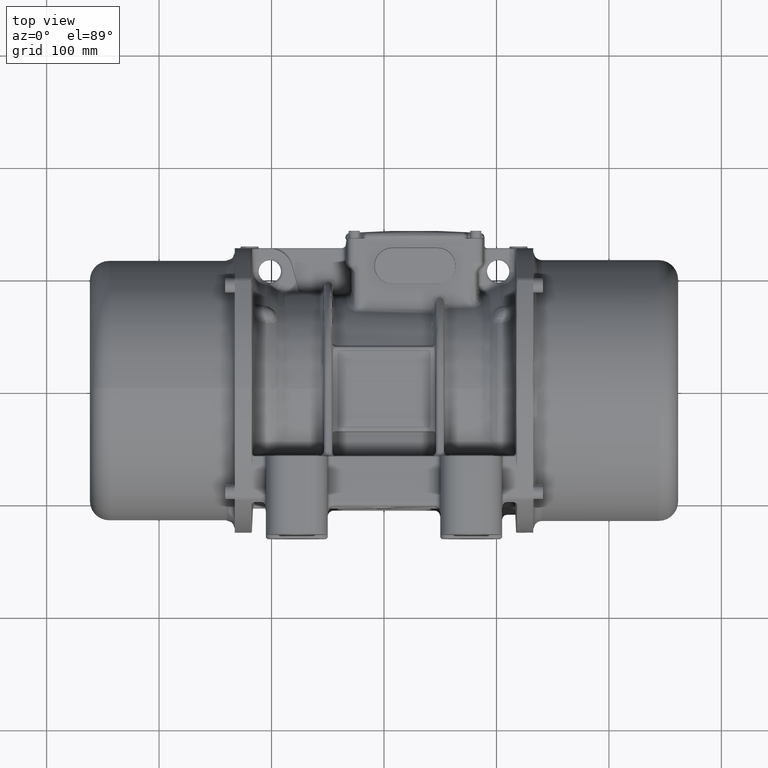
[diagram: clean part render]
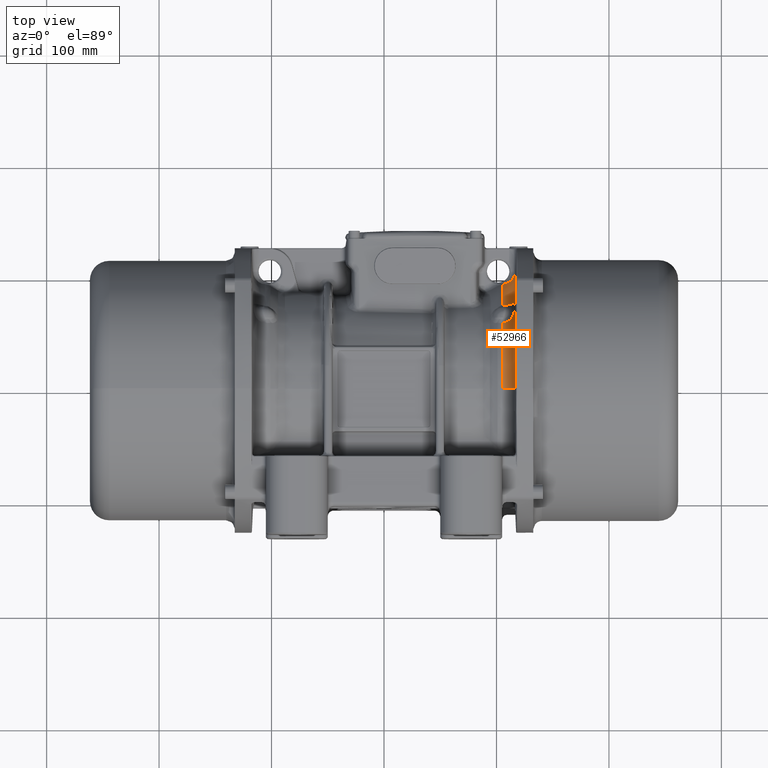
[diagram: same view with one face highlighted and labeled with its STEP entity id]
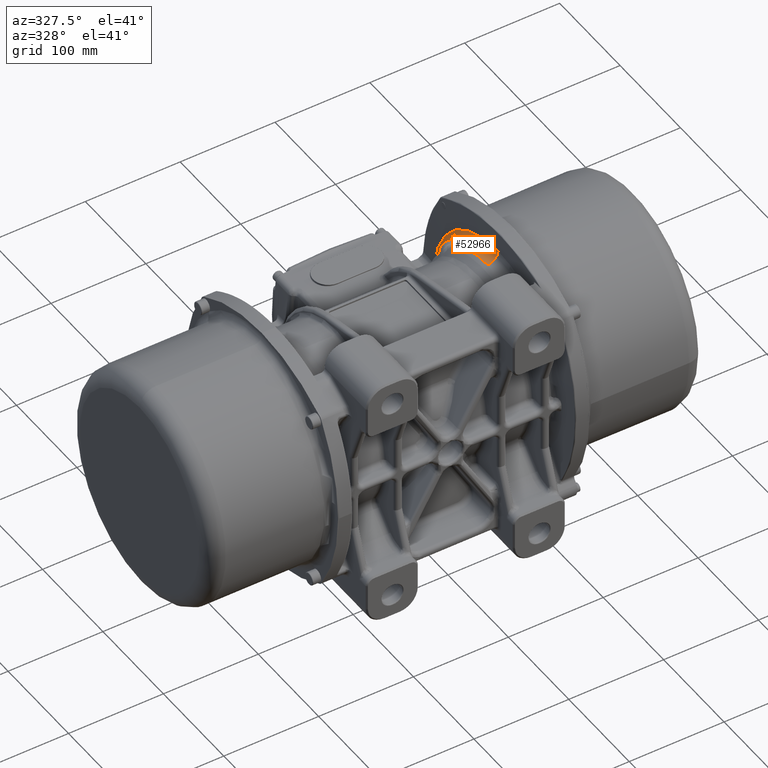
[diagram: same view with one face highlighted and labeled with its STEP entity id]
A machine part, top view. The second image highlights one B-rep face of the part: STEP entity #52966.
A second angle (auxiliary view) of the same face is appended — the face is thin or edge-on in the first view.
In plain terms, the highlighted toroidal blend (fillet) surface has major radius 107 mm and minor (blend) radius 12 mm.
Its self-contained STEP definition (entity closure, byte-faithful):
#292 = CARTESIAN_POINT ( 'NONE',  ( 105.7689292740021900, 58.91350817195719700, 74.59466595996239800 ) ) ;
#1168 = CARTESIAN_POINT ( 'NONE',  ( 106.4675455657123300, 58.94890908728345400, 74.65104205521089400 ) ) ;
#1380 = CARTESIAN_POINT ( 'NONE',  ( 107.8305861490186000, 59.26712605695800600, 74.79846439194710700 ) ) ;
#2503 = EDGE_CURVE ( 'NONE', #3961, #85003, #30197, .T. ) ;
#3426 = CARTESIAN_POINT ( 'NONE',  ( 105.7689292740000000, -1.324943627034614000E-009, 1.107620939411190000E-011 ) ) ;
#3961 = VERTEX_POINT ( 'NONE', #35522 ) ;
#4083 = EDGE_CURVE ( 'NONE', #71861, #121483, #15169, .T. ) ;
#4919 = CARTESIAN_POINT ( 'NONE',  ( 115.7288528879818400, 101.5653235470109800, 13.20475090512557500 ) ) ;
#5368 = CARTESIAN_POINT ( 'NONE',  ( 113.3642083967274800, 97.90959006556489900, 12.95961255710392600 ) ) ;
#5421 = FACE_OUTER_BOUND ( 'NONE', #55054, .T. ) ;
#5596 = CARTESIAN_POINT ( 'NONE',  ( 111.4586842790448600, 75.44372760998422200, 61.16861360488872600 ) ) ;
#6276 = CARTESIAN_POINT ( 'NONE',  ( 115.8326450012909000, 101.8239859723926600, 13.22167478367763300 ) ) ;
#6506 = CARTESIAN_POINT ( 'NONE',  ( 111.6207118906533300, 75.48144881480072900, 61.30305905681265700 ) ) ;
#6731 = CARTESIAN_POINT ( 'NONE',  ( 115.6941848065150400, 101.4823127536670700, 13.19929225356159600 ) ) ;
#6933 = DIRECTION ( 'NONE',  ( 1.000000000000000000, -8.281330032705208600E-017, -1.831206913087109800E-016 ) ) ;
#6941 = CARTESIAN_POINT ( 'NONE',  ( 114.0204814469895200, 76.03723544680396200, 64.19904338924908400 ) ) ;
#7268 = AXIS2_PLACEMENT_3D ( 'NONE', #11656, #136005, #104902 ) ;
#7638 = CARTESIAN_POINT ( 'NONE',  ( 110.4308036585494900, 95.63567452510290000, 12.80264782387215800 ) ) ;
#7863 = CARTESIAN_POINT ( 'NONE',  ( 113.3319783029813400, 63.14592761886256500, 75.89274307153358700 ) ) ;
#8087 = CARTESIAN_POINT ( 'NONE',  ( 111.1034871725938900, 96.03197236133935600, 12.83022299868890300 ) ) ;
#8314 = CARTESIAN_POINT ( 'NONE',  ( 116.0127664432377200, 70.97078727795387500, 74.89422771893670500 ) ) ;
#8752 = CARTESIAN_POINT ( 'NONE',  ( 115.6642782351407000, 75.75177907823278600, 68.70197974104878800 ) ) ;
#9214 = CARTESIAN_POINT ( 'NONE',  ( 110.6827723462277500, 60.59976135419488200, 75.27163834459456400 ) ) ;
#9657 = CARTESIAN_POINT ( 'NONE',  ( 115.1572593984283900, 66.79251087964652800, 76.06349486637300600 ) ) ;
#10222 = CARTESIAN_POINT ( 'NONE',  ( 105.7689292740021900, 74.59466595995239400, 58.91350817186660300 ) ) ;
#10801 = CARTESIAN_POINT ( 'NONE',  ( 105.7689292740000000, 94.20100722604540500, 12.70180587093276100 ) ) ;
#11656 = CARTESIAN_POINT ( 'NONE',  ( 104.6371793911750100, -1.324947096481565900E-009, 106.9999999988420700 ) ) ;
#13567 = DIRECTION ( 'NONE',  ( 1.000000000000000000, -8.281330032705208600E-017, -1.831206913087109800E-016 ) ) ;
#15169 = CIRCLE ( 'NONE', #38302, 95.05348828358059200 ) ;
#15510 = CARTESIAN_POINT ( 'NONE',  ( 115.0026911939019000, 100.0571785054219400, 13.10466824527819300 ) ) ;
#15970 = CARTESIAN_POINT ( 'NONE',  ( 112.8286511735123600, 97.34414058753047500, 12.92101170702613000 ) ) ;
#17357 = CARTESIAN_POINT ( 'NONE',  ( 115.6881707144549000, 101.4680842924555400, 13.19835438279817600 ) ) ;
#17577 = CARTESIAN_POINT ( 'NONE',  ( 114.5895993120563500, 76.10458767625095800, 65.32440872550898800 ) ) ;
#18030 = CARTESIAN_POINT ( 'NONE',  ( 107.8305861490072000, 74.79846439197930900, 59.26712605698359900 ) ) ;
#18215 = VERTEX_POINT ( 'NONE', #66203 ) ;
#18488 = CARTESIAN_POINT ( 'NONE',  ( 114.5861640307059000, 65.31299515954093200, 76.10572859753425200 ) ) ;
#18945 = CARTESIAN_POINT ( 'NONE',  ( 114.0364583653116200, 64.22325080348112200, 76.04056073369683600 ) ) ;
#19383 = CARTESIAN_POINT ( 'NONE',  ( 116.0236610554181700, 71.07883750419208000, 74.83671323223943300 ) ) ;
#19842 = CARTESIAN_POINT ( 'NONE',  ( 115.7393879015485400, 75.64585827001352000, 69.08570164340147800 ) ) ;
#20293 = CARTESIAN_POINT ( 'NONE',  ( 114.3947881891876600, 64.91026980564575400, 76.08900000542225000 ) ) ;
#21212 = CARTESIAN_POINT ( 'NONE',  ( 109.8050678372312600, 60.01824866115249100, 75.08644775955815500 ) ) ;
#21673 = DIRECTION ( 'NONE',  ( 1.303365440202183100E-016, 0.0000000000000000000, -1.000000000000000000 ) ) ;
#24461 = CARTESIAN_POINT ( 'NONE',  ( 105.7689292740021900, 74.59466595995239400, 58.91350817186660300 ) ) ;
#25832 = ORIENTED_EDGE ( 'NONE', *, *, #130910, .F. ) ;
#26109 = CARTESIAN_POINT ( 'NONE',  ( 113.7785027582814200, 98.37014500239863000, 12.99094876618970900 ) ) ;
#26800 = CARTESIAN_POINT ( 'NONE',  ( 109.5032709637534500, 75.03502624420602300, 59.88051729571928700 ) ) ;
#27011 = CARTESIAN_POINT ( 'NONE',  ( 116.1051514790249400, 102.5936472871228500, 13.27176360541346700 ) ) ;
#27915 = CARTESIAN_POINT ( 'NONE',  ( 115.3732593521304200, 100.7245745524885300, 13.14932277268061600 ) ) ;
#28373 = CARTESIAN_POINT ( 'NONE',  ( 109.9397433902737800, 95.38206443098219700, 12.78493509427473300 ) ) ;
#29042 = CARTESIAN_POINT ( 'NONE',  ( 113.0346781574474700, 62.75951434457370200, 75.82284455283797800 ) ) ;
#29488 = CARTESIAN_POINT ( 'NONE',  ( 112.1541439034099500, 61.77493790945723600, 75.60825736833093900 ) ) ;
#29926 = CARTESIAN_POINT ( 'NONE',  ( 110.8324799711430200, 60.70119995698047400, 75.30360847756209400 ) ) ;
#30028 = CARTESIAN_POINT ( 'NONE',  ( 107.1582038699487900, 74.72003640168947000, 59.06720906983090200 ) ) ;
#30197 = CIRCLE ( 'NONE', #7268, 11.99999999948878000 ) ;
#30392 = CARTESIAN_POINT ( 'NONE',  ( 115.8180981054088500, 69.45966324408600200, 75.55422758242718800 ) ) ;
#30849 = CARTESIAN_POINT ( 'NONE',  ( 115.3603647483433000, 67.45629275621426800, 75.99187389412679700 ) ) ;
#32881 = EDGE_CURVE ( 'NONE', #121483, #39887, #93493, .T. ) ;
#33107 = DIRECTION ( 'NONE',  ( 1.000000000000000000, 7.887646011182619400E-017, 1.634229061735415000E-016 ) ) ;
#33760 = ORIENTED_EDGE ( 'NONE', *, *, #38127, .T. ) ;
#35522 = CARTESIAN_POINT ( 'NONE',  ( 105.7689292740000200, -1.324947190205509000E-009, 95.05348828300904500 ) ) ;
#36652 = CARTESIAN_POINT ( 'NONE',  ( 113.5385273042615400, 98.09756139973148900, 12.97242581354613300 ) ) ;
#36713 = TOROIDAL_SURFACE ( 'NONE', #85766, 106.9999999988310000, 11.99999999948877900 ) ;
#37109 = CARTESIAN_POINT ( 'NONE',  ( 115.6891680901290900, 101.4704412061974500, 13.19850978002511600 ) ) ;
#37330 = CARTESIAN_POINT ( 'NONE',  ( 110.6082361422741900, 75.25452506496871800, 60.53917584478138300 ) ) ;
#38127 = EDGE_CURVE ( 'NONE', #90637, #71861, #79769, .T. ) ;
#38302 = AXIS2_PLACEMENT_3D ( 'NONE', #123000, #6933, #39158 ) ;
#38706 = CARTESIAN_POINT ( 'NONE',  ( 114.3585721445663700, 76.08521999384535700, 64.83629361500236100 ) ) ;
#38944 = CARTESIAN_POINT ( 'NONE',  ( 105.7689292740000000, 94.20100722604540500, 12.70180587093276100 ) ) ;
#39158 = DIRECTION ( 'NONE',  ( -1.459997740052606400E-016, 0.0000000000000000000, -1.000000000000000000 ) ) ;
#39168 = CARTESIAN_POINT ( 'NONE',  ( 113.8354401022943100, 76.00246879013526800, 63.88786384692581100 ) ) ;
#39617 = CARTESIAN_POINT ( 'NONE',  ( 112.8609514290421700, 62.54965517119649800, 75.78103001764061700 ) ) ;
#39887 = VERTEX_POINT ( 'NONE', #83870 ) ;
#40043 = CARTESIAN_POINT ( 'NONE',  ( 115.8835708138766400, 75.40452463160713100, 69.87829551004982400 ) ) ;
#40502 = CARTESIAN_POINT ( 'NONE',  ( 110.7068440892164200, 60.61587103756915000, 75.27674535903273100 ) ) ;
#40949 = CARTESIAN_POINT ( 'NONE',  ( 115.2461735594112300, 67.07096297127091600, 76.03773268575318400 ) ) ;
#41331 = EDGE_CURVE ( 'NONE', #135141, #18215, #46110, .T. ) ;
#41401 = CARTESIAN_POINT ( 'NONE',  ( 114.3160995401682800, 64.75474476321053900, 76.07947382086086900 ) ) ;
#43231 = CARTESIAN_POINT ( 'NONE',  ( 116.6257580500384000, 1.615201028482005100E-010, 9.119874994079070400E-011 ) ) ;
#44760 = DIRECTION ( 'NONE',  ( 1.831206913087109800E-016, 4.150556230182344200E-033, 1.000000000000000000 ) ) ;
#46110 = B_SPLINE_CURVE_WITH_KNOTS ( 'NONE', 3,
 ( #125965, #64525, #1168, #292 ),
 .UNSPECIFIED., .F., .F.,
 ( 4, 4 ),
 ( 0.0000000000000000000, 1.000000000000000000 ),
 .UNSPECIFIED. ) ;
#46116 = CARTESIAN_POINT ( 'NONE',  ( 104.6371793911750000, -1.324947096481565900E-009, 1.107447467063594100E-011 ) ) ;
#47218 = CARTESIAN_POINT ( 'NONE',  ( 113.3977716009329600, 97.94525197323862600, 12.96204593809560800 ) ) ;
#48560 = CARTESIAN_POINT ( 'NONE',  ( 116.2959730057435900, 103.2815192018832800, 13.31643703780071600 ) ) ;
#48782 = CARTESIAN_POINT ( 'NONE',  ( 112.2187428249297200, 75.62450083897825000, 61.85393561913672800 ) ) ;
#49972 = EDGE_CURVE ( 'NONE', #39887, #135141, #130064, .T. ) ;
#50143 = CARTESIAN_POINT ( 'NONE',  ( 115.7536775663123900, 75.62336501846675700, 69.16218200512022900 ) ) ;
#50586 = CARTESIAN_POINT ( 'NONE',  ( 111.4368194133540700, 61.15019954846752600, 75.43848618435980300 ) ) ;
#51038 = CARTESIAN_POINT ( 'NONE',  ( 114.8935147138876400, 66.03650887728497300, 76.10950030809613100 ) ) ;
#51480 = CARTESIAN_POINT ( 'NONE',  ( 115.1986750751967500, 66.92040225697623200, 76.05229332298893000 ) ) ;
#52966 = ADVANCED_FACE ( 'NONE', ( #5421 ), #36713, .F. ) ;
#55054 = EDGE_LOOP ( 'NONE', ( #58435, #118821, #25832, #33760, #76342, #120196, #133201, #90881 ) ) ;
#56209 = CARTESIAN_POINT ( 'NONE',  ( 107.8305861490186000, 59.26712605695800600, 74.79846439194710700 ) ) ;
#57959 = CARTESIAN_POINT ( 'NONE',  ( 114.2767140461706700, 76.07501676165084300, 64.67573856881340100 ) ) ;
#58172 = CARTESIAN_POINT ( 'NONE',  ( 115.7013006578243300, 101.4992041657684500, 13.20040483548722300 ) ) ;
#58435 = ORIENTED_EDGE ( 'NONE', *, *, #63592, .T. ) ;
#59319 = CARTESIAN_POINT ( 'NONE',  ( 112.7706212318485900, 75.75863063982807000, 62.40325159674893700 ) ) ;
#59551 = CARTESIAN_POINT ( 'NONE',  ( 108.5792656302153900, 94.71808056208827500, 12.73846536456481000 ) ) ;
#60223 = CARTESIAN_POINT ( 'NONE',  ( 116.1430360615248400, 73.33781419016075600, 73.16541551881344700 ) ) ;
#60669 = CARTESIAN_POINT ( 'NONE',  ( 112.8091691528050300, 62.48871308826898700, 75.76850331512814300 ) ) ;
#61117 = CARTESIAN_POINT ( 'NONE',  ( 115.1778441895304600, 66.85578016518779500, 76.05805648862980200 ) ) ;
#61560 = CARTESIAN_POINT ( 'NONE',  ( 112.8256434243733800, 62.50800793099949000, 75.77249196030204800 ) ) ;
#62019 = CARTESIAN_POINT ( 'NONE',  ( 116.0506843354954800, 74.69299105747839500, 71.34807195469031200 ) ) ;
#63592 = EDGE_CURVE ( 'NONE', #18215, #3961, #123875, .T. ) ;
#63831 = CARTESIAN_POINT ( 'NONE',  ( 108.8568978792049800, 59.57227560417653900, 74.91817540478290000 ) ) ;
#64525 = CARTESIAN_POINT ( 'NONE',  ( 107.1582038698920200, 59.06720906995969500, 74.72003640185198500 ) ) ;
#65809 = DIRECTION ( 'NONE',  ( -1.000000000000000000, 8.281330032705208600E-017, 1.831206913087109800E-016 ) ) ;
#66203 = CARTESIAN_POINT ( 'NONE',  ( 105.7689292740021900, 58.91350817195719700, 74.59466595996239800 ) ) ;
#67822 = CARTESIAN_POINT ( 'NONE',  ( 116.0076696245334300, 102.3007311280819100, 13.25272211770426600 ) ) ;
#68273 = CARTESIAN_POINT ( 'NONE',  ( 113.8844406736063500, 98.49627971085240600, 12.99949922432108600 ) ) ;
#68493 = CARTESIAN_POINT ( 'NONE',  ( 114.9368887540136800, 76.11620074119321100, 66.11853998114791900 ) ) ;
#68703 = CARTESIAN_POINT ( 'NONE',  ( 115.7742161104773300, 101.6765026285278000, 13.21203652576293500 ) ) ;
#69607 = CARTESIAN_POINT ( 'NONE',  ( 115.7158500462546000, 101.5339319674255400, 13.20268968497888400 ) ) ;
#70502 = CARTESIAN_POINT ( 'NONE',  ( 110.6558384202762300, 95.76384851222832100, 12.81157372368589100 ) ) ;
#70731 = CARTESIAN_POINT ( 'NONE',  ( 113.8178990699569200, 63.85575221238019600, 75.99909521714961600 ) ) ;
#71178 = CARTESIAN_POINT ( 'NONE',  ( 115.9647092463329700, 75.15389431865317200, 70.48780162299419800 ) ) ;
#71638 = CARTESIAN_POINT ( 'NONE',  ( 115.1638504092327400, 66.81267807709497200, 76.06179318626279000 ) ) ;
#71861 = VERTEX_POINT ( 'NONE', #10801 ) ;
#72071 = CARTESIAN_POINT ( 'NONE',  ( 111.0060189209218900, 60.82290793310215800, 75.34133417523349900 ) ) ;
#72511 = CARTESIAN_POINT ( 'NONE',  ( 115.2850285328708100, 67.19960736394804700, 76.02332210100837500 ) ) ;
#72744 = AXIS2_PLACEMENT_3D ( 'NONE', #43231, #33107, #21673 ) ;
#76342 = ORIENTED_EDGE ( 'NONE', *, *, #4083, .T. ) ;
#76862 = AXIS2_PLACEMENT_3D ( 'NONE', #3426, #13567, #128227 ) ;
#78792 = CARTESIAN_POINT ( 'NONE',  ( 113.3589364342910100, 97.90400667056312000, 12.95923148751832700 ) ) ;
#79034 = CARTESIAN_POINT ( 'NONE',  ( 115.4274144696860400, 75.96018044309903400, 67.69235548895913700 ) ) ;
#79769 = B_SPLINE_CURVE_WITH_KNOTS ( 'NONE', 3,
 ( #80797, #81705, #89856, #121415, #48560, #27011, #67822, #100391, #6276, #68703, #121877, #4919, #69607, #58172, #6731, #80177, #37109, #17357, #90747, #27915, #15510, #110465, #88946, #68273, #26109, #99494, #36652, #110011, #47218, #131067, #5368, #78792, #15970, #81997, #133327, #8087, #70502, #7638, #123240, #122338, #102217, #28373, #113592, #59551, #91207, #38944 ),
 .UNSPECIFIED., .F., .F.,
 ( 4, 2, 2, 2, 2, 2, 1, 1, 1, 1, 2, 2, 2, 2, 2, 1, 1, 1, 2, 2, 2, 2, 1, 1, 1, 2, 2, 4 ),
 ( 0.0000000000000000000, 0.06250000000033947800, 0.1250000000006789600, 0.1875000000010184400, 0.2187500000011897400, 0.2343750000012753700, 0.2421875000013182200, 0.2460937500013364300, 0.2480468750013441500, 0.2490234375013490000, 0.2495117187513503900, 0.2500000000013518100, 0.3750000000012007600, 0.4375000000011242100, 0.4687500000010859600, 0.4843750000010677000, 0.4921875000010576000, 0.4960937500010534400, 0.4980468750010513800, 0.5000000000010492700, 0.6250000000008172400, 0.6875000000007012200, 0.7187500000006442600, 0.7343750000006164000, 0.7421875000006007400, 0.7460937500005917500, 0.7500000000005827600, 1.000000000000000000 ),
 .UNSPECIFIED. ) ;
#80177 = CARTESIAN_POINT ( 'NONE',  ( 115.6906670465699700, 101.4739849919903900, 13.19874340670588900 ) ) ;
#80397 = CARTESIAN_POINT ( 'NONE',  ( 114.5338685587604200, 76.10136674045347100, 65.20149318141798700 ) ) ;
#80797 = CARTESIAN_POINT ( 'NONE',  ( 116.6257580500120000, 105.6215036489030000, 13.46689875197479900 ) ) ;
#81318 = CARTESIAN_POINT ( 'NONE',  ( 113.1351897945730100, 62.88754360778507600, 75.84668610304707700 ) ) ;
#81705 = CARTESIAN_POINT ( 'NONE',  ( 116.6017304291608500, 105.0711736480883500, 13.43201165922247000 ) ) ;
#81771 = CARTESIAN_POINT ( 'NONE',  ( 115.7176042540377400, 75.67896285673843700, 68.97085055718828500 ) ) ;
#81997 = CARTESIAN_POINT ( 'NONE',  ( 112.2689275045096800, 96.85820142597143000, 12.88746890165620100 ) ) ;
#82228 = CARTESIAN_POINT ( 'NONE',  ( 116.0565925289839100, 71.43330886941615200, 74.63754112663987400 ) ) ;
#82678 = CARTESIAN_POINT ( 'NONE',  ( 115.4074247445536500, 67.62661100488934100, 75.96740436445571700 ) ) ;
#83143 = CARTESIAN_POINT ( 'NONE',  ( 114.4596801920002600, 65.04424380175086600, 76.09539722697523700 ) ) ;
#83870 = CARTESIAN_POINT ( 'NONE',  ( 107.8305861490072000, 74.79846439197930900, 59.26712605698359900 ) ) ;
#85003 = VERTEX_POINT ( 'NONE', #114021 ) ;
#85766 = AXIS2_PLACEMENT_3D ( 'NONE', #46116, #65809, #44760 ) ;
#88946 = CARTESIAN_POINT ( 'NONE',  ( 114.1993418530551000, 98.88785362245066300, 13.02599569364055100 ) ) ;
#89633 = CARTESIAN_POINT ( 'NONE',  ( 115.5072698047837700, 75.90663783066087000, 68.00474255771133900 ) ) ;
#89856 = CARTESIAN_POINT ( 'NONE',  ( 116.5422090143808600, 104.5713399572639000, 13.39986161419518100 ) ) ;
#90522 = CARTESIAN_POINT ( 'NONE',  ( 111.9734627725390700, 75.56520892496662600, 61.61747506185218300 ) ) ;
#90637 = VERTEX_POINT ( 'NONE', #126495 ) ;
#90747 = CARTESIAN_POINT ( 'NONE',  ( 115.6884024721723400, 101.4686309539478700, 13.19839044109383500 ) ) ;
#90881 = ORIENTED_EDGE ( 'NONE', *, *, #41331, .T. ) ;
#91207 = CARTESIAN_POINT ( 'NONE',  ( 107.1686570899720200, 94.33354484713606800, 12.71118943202838600 ) ) ;
#91426 = CARTESIAN_POINT ( 'NONE',  ( 110.9591752806430700, 75.33036679521610800, 60.77954214924902500 ) ) ;
#91871 = CARTESIAN_POINT ( 'NONE',  ( 113.4575228564397200, 63.32128308900627900, 75.92127745986341800 ) ) ;
#92322 = CARTESIAN_POINT ( 'NONE',  ( 112.4843479826025400, 62.11142503339326700, 75.68976980817930700 ) ) ;
#92781 = CARTESIAN_POINT ( 'NONE',  ( 111.1512040705149400, 60.93056938726643800, 75.37375607689179400 ) ) ;
#93235 = CARTESIAN_POINT ( 'NONE',  ( 116.1204603247647600, 73.96478577634009400, 72.42220416265176700 ) ) ;
#93493 = B_SPLINE_CURVE_WITH_KNOTS ( 'NONE', 3,
 ( #10222, #135440, #30028, #114826 ),
 .UNSPECIFIED., .F., .F.,
 ( 4, 4 ),
 ( 0.0000000000000000000, 1.000000000000000000 ),
 .UNSPECIFIED. ) ;
#93692 = CARTESIAN_POINT ( 'NONE',  ( 116.0892396871881800, 71.84631506029136000, 74.38263896304948700 ) ) ;
#99494 = CARTESIAN_POINT ( 'NONE',  ( 113.6186732543054100, 98.18735431960173800, 12.97853201981240500 ) ) ;
#100165 = CARTESIAN_POINT ( 'NONE',  ( 115.6141025835608600, 75.80667074711976700, 68.47010220397301300 ) ) ;
#100391 = CARTESIAN_POINT ( 'NONE',  ( 115.8747796026579900, 101.9340888113020300, 13.22885185657818900 ) ) ;
#100624 = CARTESIAN_POINT ( 'NONE',  ( 111.8570036494246300, 75.53739474720015300, 61.51153500611032100 ) ) ;
#101085 = CARTESIAN_POINT ( 'NONE',  ( 112.1063786325468800, 75.59726545930770700, 61.74398090683138200 ) ) ;
#101538 = CARTESIAN_POINT ( 'NONE',  ( 112.2001062099778700, 75.61997647594522200, 61.83552203254141900 ) ) ;
#101986 = CARTESIAN_POINT ( 'NONE',  ( 108.6964868167942600, 74.89943404204240100, 59.52461991110792600 ) ) ;
#102217 = CARTESIAN_POINT ( 'NONE',  ( 109.9776085755379300, 95.40079086850882100, 12.78624501108146700 ) ) ;
#102443 = CARTESIAN_POINT ( 'NONE',  ( 112.9136404150426400, 62.61228437899453800, 75.79375421371956600 ) ) ;
#102887 = CARTESIAN_POINT ( 'NONE',  ( 115.9929355871692700, 70.78805563943063800, 74.98656512777208100 ) ) ;
#103340 = CARTESIAN_POINT ( 'NONE',  ( 110.7572168977103900, 60.64988846078442500, 75.28748341050742000 ) ) ;
#103773 = CARTESIAN_POINT ( 'NONE',  ( 115.5399134806360700, 68.13470193449843700, 75.88310511483273000 ) ) ;
#104233 = CARTESIAN_POINT ( 'NONE',  ( 115.0286865827801700, 66.40209565620105500, 76.09540738211622100 ) ) ;
#104902 = DIRECTION ( 'NONE',  ( 1.000000000000000000, -8.281330032232211300E-017, 0.0000000000000000000 ) ) ;
#106714 = CIRCLE ( 'NONE', #72744, 106.4765673521440000 ) ;
#110011 = CARTESIAN_POINT ( 'NONE',  ( 113.4447301278306100, 97.99556512360671000, 12.96547704300331100 ) ) ;
#110465 = CARTESIAN_POINT ( 'NONE',  ( 114.4054151277657200, 99.16648555281631200, 13.04479033919038000 ) ) ;
#110692 = CARTESIAN_POINT ( 'NONE',  ( 114.4762824728814500, 76.09663289507076900, 65.07938361764252000 ) ) ;
#111578 = CARTESIAN_POINT ( 'NONE',  ( 112.1720986000385200, 75.61318112744059800, 61.80795253088118100 ) ) ;
#112040 = CARTESIAN_POINT ( 'NONE',  ( 114.6453354234541600, 76.10715008628602600, 65.44955314945097800 ) ) ;
#112927 = CARTESIAN_POINT ( 'NONE',  ( 116.1054746438236700, 72.11124407884308600, 74.19945813381012600 ) ) ;
#113372 = CARTESIAN_POINT ( 'NONE',  ( 111.6208864071633700, 61.30236163547843400, 75.48148647169144000 ) ) ;
#113592 = CARTESIAN_POINT ( 'NONE',  ( 109.9225256081552100, 95.37360022717075500, 12.78434288650623100 ) ) ;
#113810 = CARTESIAN_POINT ( 'NONE',  ( 115.6166671188261900, 68.46959970508621000, 75.81236646100353500 ) ) ;
#114021 = CARTESIAN_POINT ( 'NONE',  ( 116.6257580500383900, -1.324948089295330900E-009, 106.4765673558448800 ) ) ;
#114284 = CARTESIAN_POINT ( 'NONE',  ( 115.9142669981277700, 70.10008057009399400, 75.32070044163420200 ) ) ;
#114725 = CARTESIAN_POINT ( 'NONE',  ( 116.0443218364509300, 71.29303940329082000, 74.71919871276671200 ) ) ;
#114826 = CARTESIAN_POINT ( 'NONE',  ( 107.8305861490072000, 74.79846439197930900, 59.26712605698359900 ) ) ;
#118821 = ORIENTED_EDGE ( 'NONE', *, *, #2503, .T. ) ;
#120196 = ORIENTED_EDGE ( 'NONE', *, *, #32881, .T. ) ;
#121415 = CARTESIAN_POINT ( 'NONE',  ( 116.3893174982636800, 103.6765804941394600, 13.34208255363806100 ) ) ;
#121483 = VERTEX_POINT ( 'NONE', #24461 ) ;
#121877 = CARTESIAN_POINT ( 'NONE',  ( 115.7555317560707700, 101.6302869179759700, 13.20901164326711800 ) ) ;
#122102 = CARTESIAN_POINT ( 'NONE',  ( 112.2289940294631100, 75.62699108986827000, 61.86410547759335500 ) ) ;
#122338 = CARTESIAN_POINT ( 'NONE',  ( 110.0343878090635500, 95.42905800306797900, 12.78822180244453800 ) ) ;
#122557 = CARTESIAN_POINT ( 'NONE',  ( 115.1574105024754700, 76.08367117145113000, 66.75128948859718000 ) ) ;
#123000 = CARTESIAN_POINT ( 'NONE',  ( 105.7689292740000000, -1.324943627034614000E-009, 1.107620939411190000E-011 ) ) ;
#123008 = CARTESIAN_POINT ( 'NONE',  ( 114.2586667215471400, 64.64398696847692300, 76.07185527341428600 ) ) ;
#123240 = CARTESIAN_POINT ( 'NONE',  ( 110.1667342515812300, 95.49626038609649500, 12.79291804249715300 ) ) ;
#123467 = CARTESIAN_POINT ( 'NONE',  ( 116.0733047748256000, 74.52524530764687000, 71.62586359775028200 ) ) ;
#123875 = CIRCLE ( 'NONE', #76862, 95.05348828358059200 ) ;
#123915 = CARTESIAN_POINT ( 'NONE',  ( 115.7603737169482800, 75.61246751615169600, 69.19854514469297200 ) ) ;
#124366 = CARTESIAN_POINT ( 'NONE',  ( 114.6660863033350900, 65.49323285988319300, 76.10933025205395100 ) ) ;
#124810 = CARTESIAN_POINT ( 'NONE',  ( 116.1081767502861900, 74.16157841343186900, 72.16241179674102600 ) ) ;
#125965 = CARTESIAN_POINT ( 'NONE',  ( 107.8305861490186000, 59.26712605695800600, 74.79846439194710700 ) ) ;
#126495 = CARTESIAN_POINT ( 'NONE',  ( 116.6257580500120000, 105.6215036489030000, 13.46689875197479900 ) ) ;
#128227 = DIRECTION ( 'NONE',  ( -1.459997740052606400E-016, 0.0000000000000000000, -1.000000000000000000 ) ) ;
#130064 = B_SPLINE_CURVE_WITH_KNOTS ( 'NONE', 3,
 ( #18030, #101986, #26800, #37330, #91426, #5596, #6506, #100624, #90522, #101085, #111578, #101538, #48782, #122102, #59319, #132641, #39168, #6941, #57959, #38706, #110692, #80397, #17577, #131294, #112040, #68493, #122557, #79034, #89633, #100165, #8752, #81771, #19842, #50143, #123915, #40043, #71178, #62019, #123467, #124810, #93235, #60223, #134452, #112927, #93692, #82228, #114725, #19383, #8314, #134891, #102887, #135340, #114284, #30392, #113810, #103773, #82678, #30849, #72511, #40949, #51480, #61117, #71638, #9657, #104233, #51038, #124366, #18488, #83143, #20293, #41401, #134004, #123008, #133550, #18945, #70731, #91871, #7863, #81318, #29042, #102443, #39617, #61560, #60669, #92322, #29488, #113372, #50586, #92781, #72071, #29926, #103340, #40502, #9214, #21212, #63831, #1380 ),
 .UNSPECIFIED., .F., .F.,
 ( 4, 2, 2, 2, 1, 1, 1, 2, 2, 2, 2, 2, 1, 2, 2, 2, 2, 1, 1, 2, 2, 2, 2, 2, 2, 2, 2, 1, 2, 2, 2, 2, 2, 1, 1, 2, 2, 2, 2, 1, 1, 2, 2, 2, 2, 1, 1, 2, 2, 2, 2, 1, 1, 2, 2, 4 ),
 ( 0.0000000000000000000, 0.06249999999997203600, 0.09374999999995763100, 0.1093749999999503300, 0.1171874999999471500, 0.1210937499999455600, 0.1230468749999444100, 0.1240234374999440900, 0.1249999999999437800, 0.1874999999999564200, 0.2187499999999630300, 0.2343749999999663600, 0.2421874999999674700, 0.2460937499999682800, 0.2499999999999690800, 0.3124999999999926200, 0.3437500000000037700, 0.3593750000000093800, 0.3671875000000118800, 0.3710937500000130500, 0.3750000000000141600, 0.4375000000000138200, 0.4687500000000136600, 0.5000000000000134300, 0.5625000000000112100, 0.5937500000000106600, 0.6093750000000103300, 0.6171875000000107700, 0.6210937500000103300, 0.6250000000000098800, 0.6874999999999921200, 0.7187499999999831200, 0.7343749999999792400, 0.7421874999999773500, 0.7460937499999761300, 0.7480468749999760200, 0.7499999999999759100, 0.7812499999999762400, 0.7968749999999763500, 0.8046874999999755800, 0.8085937499999754600, 0.8105468749999755800, 0.8124999999999758000, 0.8437499999999783500, 0.8593749999999800200, 0.8671874999999806800, 0.8710937499999810200, 0.8730468749999813500, 0.8749999999999815700, 0.9062499999999843500, 0.9218749999999855700, 0.9296874999999857900, 0.9335937499999859000, 0.9355468749999862300, 0.9374999999999865700, 1.000000000000000000 ),
 .UNSPECIFIED. ) ;
#130910 = EDGE_CURVE ( 'NONE', #90637, #85003, #106714, .T. ) ;
#131067 = CARTESIAN_POINT ( 'NONE',  ( 113.3776351053556100, 97.92383537792237300, 12.96058468398086000 ) ) ;
#131294 = CARTESIAN_POINT ( 'NONE',  ( 114.6263462700324400, 76.10639299518815900, 65.40652710884002400 ) ) ;
#132641 = CARTESIAN_POINT ( 'NONE',  ( 113.2338635645217400, 75.87492653625308500, 62.97814166222757800 ) ) ;
#133201 = ORIENTED_EDGE ( 'NONE', *, *, #49972, .T. ) ;
#133327 = CARTESIAN_POINT ( 'NONE',  ( 111.3987021031723800, 96.22643550424619700, 12.84372125117046400 ) ) ;
#133550 = CARTESIAN_POINT ( 'NONE',  ( 114.2478210451523800, 64.62330027179328300, 76.07036251532029800 ) ) ;
#134004 = CARTESIAN_POINT ( 'NONE',  ( 114.2817270195253600, 64.68826619163930000, 76.07495954183887900 ) ) ;
#134452 = CARTESIAN_POINT ( 'NONE',  ( 116.1395145831236400, 72.87336589211541600, 73.61056541119998500 ) ) ;
#134891 = CARTESIAN_POINT ( 'NONE',  ( 116.0009883921712500, 70.86133392998563400, 74.94987853909420000 ) ) ;
#135141 = VERTEX_POINT ( 'NONE', #56209 ) ;
#135340 = CARTESIAN_POINT ( 'NONE',  ( 115.9889739159933800, 70.75270409079044500, 75.00400153294180000 ) ) ;
#135440 = CARTESIAN_POINT ( 'NONE',  ( 106.4675455657576300, 74.65104205504228200, 58.94890908714999300 ) ) ;
#136005 = DIRECTION ( 'NONE',  ( -8.281330032705208600E-017, -1.000000000000000000, 1.516482880544567900E-032 ) ) ;